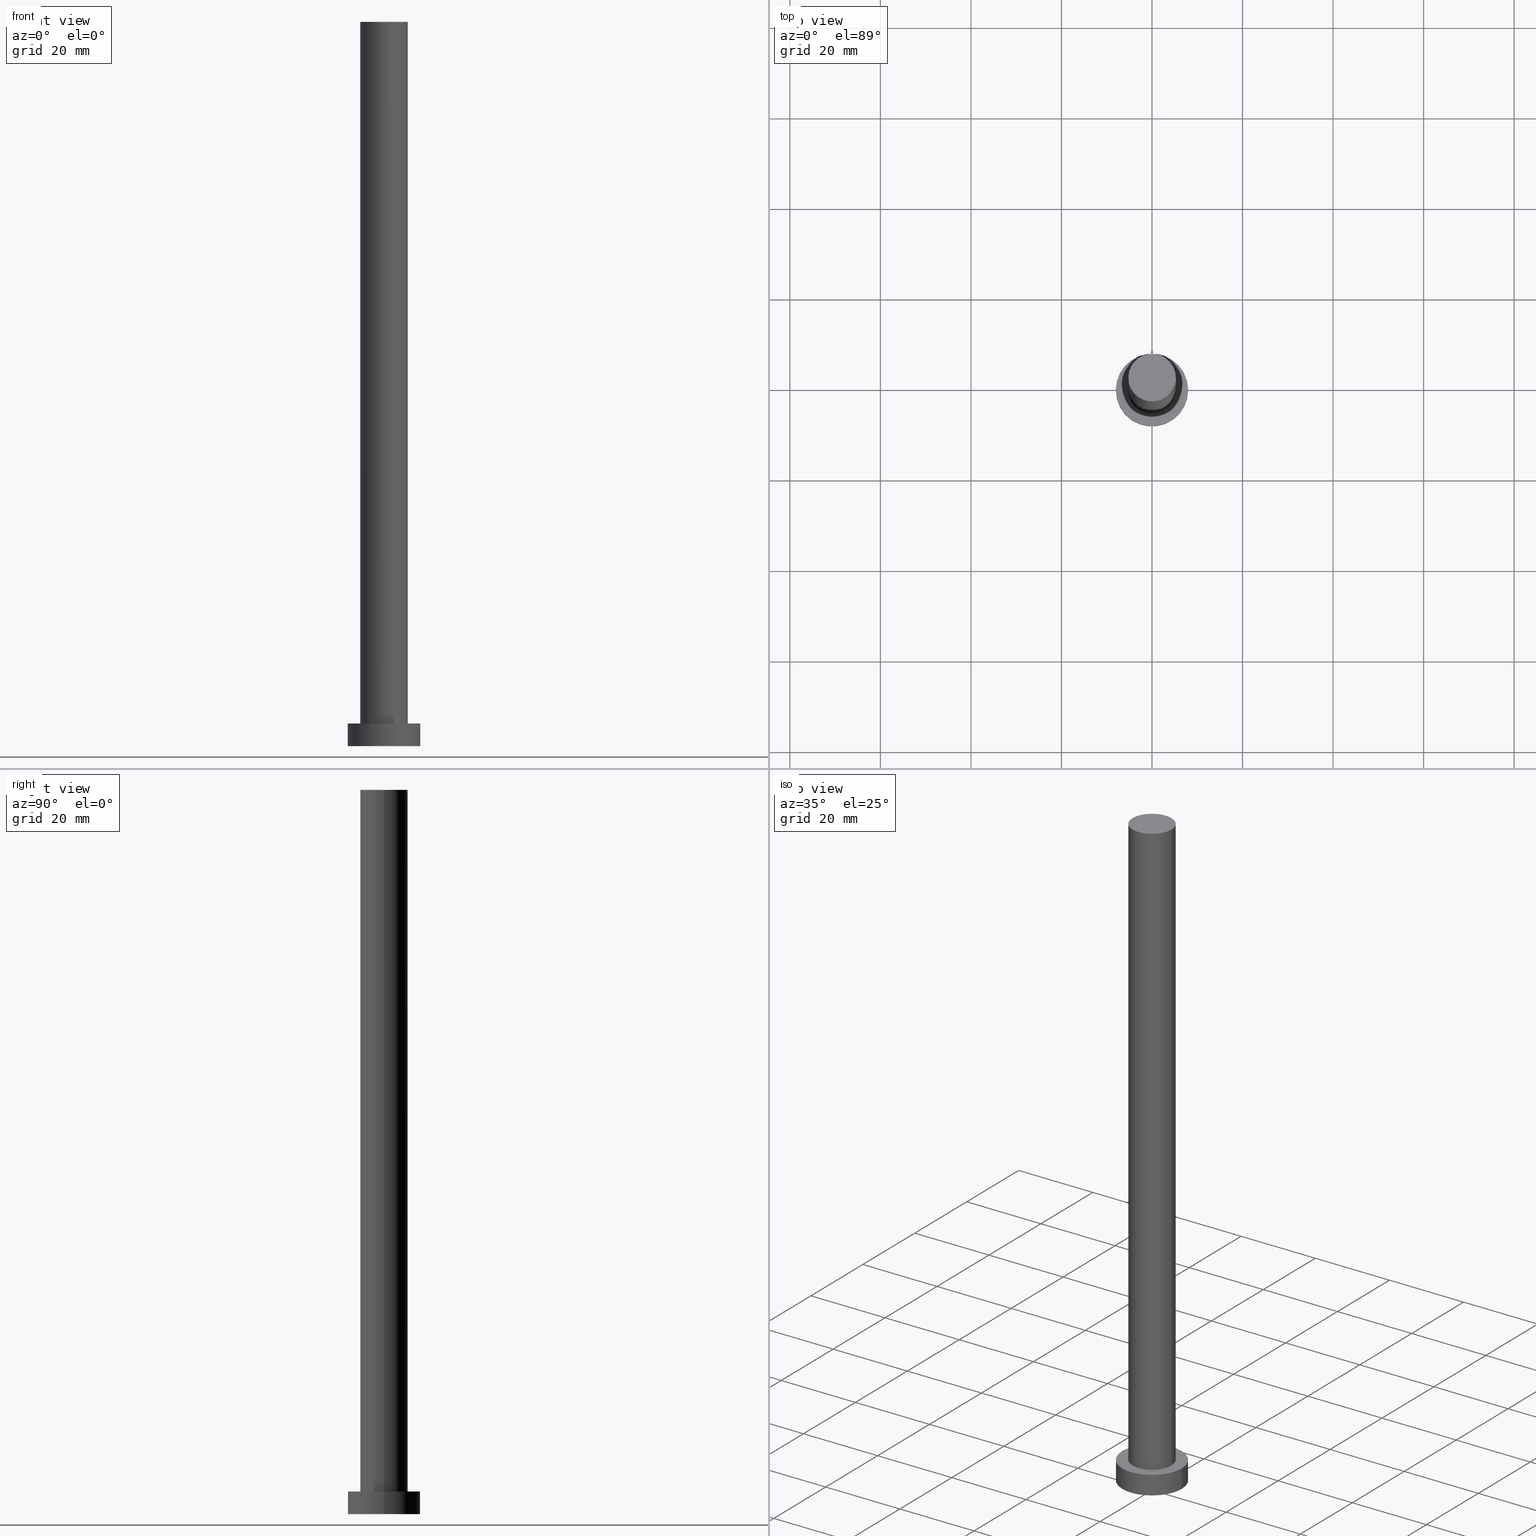
[diagram: canonical four-view strip — front | top / right | iso, engineering-drawing reading convention]
A machine part, canonical four-view strip (front | top / right | iso — engineering-drawing reading convention). The complete STEP part file that produces these views, byte-faithful:
ISO-10303-21;
HEADER;
FILE_DESCRIPTION (( 'STEP AP203' ),
    '1' );
FILE_NAME ('a9ab.STEP',
    '2023-02-13T13:13:53',
    ( '' ),
    ( '' ),
    'SwSTEP 2.0',
    'SolidWorks 2019',
    '' );
FILE_SCHEMA (( 'CONFIG_CONTROL_DESIGN' ));
ENDSEC;

DATA;
#1 = CALENDAR_DATE ( 2023, 13, 2 ) ;
#2 = APPLICATION_CONTEXT ( 'configuration controlled 3d designs of mechanical parts and assemblies' ) ;
#3 = CARTESIAN_POINT ( 'NONE',  ( 0.000000000000000000, 0.000000000000000000, 160.0000000000000000 ) ) ;
#4 = CIRCLE ( 'NONE', #49, 8.000000000000000000 ) ;
#5 = CARTESIAN_POINT ( 'NONE',  ( 8.000000000000000000, 9.797174393178825657E-16, 0.000000000000000000 ) ) ;
#6 = FACE_OUTER_BOUND ( 'NONE', #244, .T. ) ;
#7 = FACE_OUTER_BOUND ( 'NONE', #29, .T. ) ;
#8 = CC_DESIGN_APPROVAL ( #78, ( #202 ) ) ;
#9 = EDGE_CURVE ( 'NONE', #137, #64, #108, .T. ) ;
#10 = CARTESIAN_POINT ( 'NONE',  ( -8.000000000000000000, 0.000000000000000000, 5.000000000000000000 ) ) ;
#11 = ADVANCED_FACE ( 'NONE', ( #240 ), #126, .T. ) ;
#12 = FACE_BOUND ( 'NONE', #121, .T. ) ;
#13 = CYLINDRICAL_SURFACE ( 'NONE', #60, 8.000000000000000000 ) ;
#14 = CIRCLE ( 'NONE', #157, 5.250000000000000000 ) ;
#15 = DIRECTION ( 'NONE',  ( 0.000000000000000000, 0.000000000000000000, 1.000000000000000000 ) ) ;
#16 = CC_DESIGN_PERSON_AND_ORGANIZATION_ASSIGNMENT ( #18, #138, ( #202 ) ) ;
#17 = PERSON_AND_ORGANIZATION ( #38, #219 ) ;
#18 = PERSON_AND_ORGANIZATION ( #38, #219 ) ;
#19 = ORIENTED_EDGE ( 'NONE', *, *, #151, .F. ) ;
#20 = LOCAL_TIME ( 14, 13, 53.00000000000000000, #239 ) ;
#21 = DATE_AND_TIME ( #124, #20 ) ;
#22 = CIRCLE ( 'NONE', #98, 5.250000000000000000 ) ;
#23 = DIRECTION ( 'NONE',  ( -0.000000000000000000, -0.000000000000000000, -1.000000000000000000 ) ) ;
#24 = PERSON_AND_ORGANIZATION ( #38, #219 ) ;
#25 = VERTEX_POINT ( 'NONE', #10 ) ;
#26 = PERSON_AND_ORGANIZATION_ROLE ( 'classification_officer' ) ;
#27 = ADVANCED_FACE ( 'NONE', ( #6 ), #90, .T. ) ;
#28 = LINE ( 'NONE', #45, #59 ) ;
#29 = EDGE_LOOP ( 'NONE', ( #253, #73 ) ) ;
#30 = EDGE_LOOP ( 'NONE', ( #190, #50 ) ) ;
#31 = ORIENTED_EDGE ( 'NONE', *, *, #9, .F. ) ;
#32 = DIRECTION ( 'NONE',  ( 0.000000000000000000, 0.000000000000000000, 1.000000000000000000 ) ) ;
#33 = DIRECTION ( 'NONE',  ( 1.000000000000000000, 0.000000000000000000, 0.000000000000000000 ) ) ;
#34 = DIRECTION ( 'NONE',  ( -0.000000000000000000, -0.000000000000000000, -1.000000000000000000 ) ) ;
#35 = CC_DESIGN_PERSON_AND_ORGANIZATION_ASSIGNMENT ( #24, #26, ( #111 ) ) ;
#36 = AXIS2_PLACEMENT_3D ( 'NONE', #170, #250, #209 ) ;
#37 =( NAMED_UNIT ( * ) SI_UNIT ( $, .STERADIAN. ) SOLID_ANGLE_UNIT ( ) );
#38 = PERSON ( 'NEUR�EN�', 'NEUR�EN�', 'NEUR�EN�', ('NEUR�EN�'), ('NEUR�EN�'), ('NEUR�EN�') ) ;
#39 = ADVANCED_FACE ( 'NONE', ( #105 ), #204, .T. ) ;
#40 = PERSON_AND_ORGANIZATION ( #38, #219 ) ;
#41 = CIRCLE ( 'NONE', #148, 5.250000000000000000 ) ;
#42 = APPLICATION_PROTOCOL_DEFINITION ( 'international standard', 'config_control_design', 1994, #251 ) ;
#43 = DESIGN_CONTEXT ( 'detailed design', #251, 'design' ) ;
#44 = LOCAL_TIME ( 14, 13, 53.00000000000000000, #149 ) ;
#45 = CARTESIAN_POINT ( 'NONE',  ( -5.250000000000000000, 0.000000000000000000, 160.0000000000000000 ) ) ;
#46 = COORDINATED_UNIVERSAL_TIME_OFFSET ( 1, 0, .AHEAD. ) ;
#47 = ORIENTED_EDGE ( 'NONE', *, *, #72, .T. ) ;
#48 = VERTEX_POINT ( 'NONE', #65 ) ;
#49 = AXIS2_PLACEMENT_3D ( 'NONE', #168, #113, #132 ) ;
#50 = ORIENTED_EDGE ( 'NONE', *, *, #246, .T. ) ;
#51 = ADVANCED_FACE ( 'NONE', ( #186 ), #93, .T. ) ;
#52 = CC_DESIGN_DATE_AND_TIME_ASSIGNMENT ( #77, #140, ( #202 ) ) ;
#53 = DIRECTION ( 'NONE',  ( -0.000000000000000000, -0.000000000000000000, -1.000000000000000000 ) ) ;
#54 = DIRECTION ( 'NONE',  ( -0.000000000000000000, -0.000000000000000000, -1.000000000000000000 ) ) ;
#55 = DIRECTION ( 'NONE',  ( -0.000000000000000000, -0.000000000000000000, -1.000000000000000000 ) ) ;
#56 = AXIS2_PLACEMENT_3D ( 'NONE', #188, #245, #191 ) ;
#57 =( LENGTH_UNIT ( ) NAMED_UNIT ( * ) SI_UNIT ( .MILLI., .METRE. ) );
#58 = EDGE_CURVE ( 'NONE', #137, #129, #22, .T. ) ;
#59 = VECTOR ( 'NONE', #82, 1000.000000000000000 ) ;
#60 = AXIS2_PLACEMENT_3D ( 'NONE', #114, #34, #135 ) ;
#61 = PERSON_AND_ORGANIZATION ( #38, #219 ) ;
#62 = APPROVAL_DATE_TIME ( #175, #78 ) ;
#63 = PERSON_AND_ORGANIZATION ( #38, #219 ) ;
#64 = VERTEX_POINT ( 'NONE', #163 ) ;
#65 = CARTESIAN_POINT ( 'NONE',  ( -8.000000000000000000, 0.000000000000000000, 0.000000000000000000 ) ) ;
#66 = CLOSED_SHELL ( 'NONE', ( #11, #216, #27, #187, #100, #51, #39 ) ) ;
#67 = CARTESIAN_POINT ( 'NONE',  ( 8.000000000000000000, 9.797174393178825657E-16, 5.000000000000000000 ) ) ;
#68 = ORIENTED_EDGE ( 'NONE', *, *, #117, .T. ) ;
#69 = CARTESIAN_POINT ( 'NONE',  ( 5.250000000000000000, 6.429395695523604153E-16, 160.0000000000000000 ) ) ;
#70 = PLANE ( 'NONE',  #155 ) ;
#71 = CARTESIAN_POINT ( 'NONE',  ( -8.000000000000000000, 0.000000000000000000, 5.000000000000000000 ) ) ;
#72 = EDGE_CURVE ( 'NONE', #129, #160, #28, .T. ) ;
#73 = ORIENTED_EDGE ( 'NONE', *, *, #171, .F. ) ;
#74 = DIRECTION ( 'NONE',  ( 0.000000000000000000, 0.000000000000000000, 1.000000000000000000 ) ) ;
#75 = MECHANICAL_CONTEXT ( 'NONE', #2, 'mechanical' ) ;
#76 = AXIS2_PLACEMENT_3D ( 'NONE', #85, #242, #208 ) ;
#77 = DATE_AND_TIME ( #143, #252 ) ;
#78 = APPROVAL ( #176, 'NEUR�EN�' ) ;
#79 = CIRCLE ( 'NONE', #36, 5.250000000000000000 ) ;
#80 = APPROVAL_DATE_TIME ( #95, #214 ) ;
#81 = PRODUCT_RELATED_PRODUCT_CATEGORY ( 'detail', '', ( #196 ) ) ;
#82 = DIRECTION ( 'NONE',  ( -0.000000000000000000, -0.000000000000000000, -1.000000000000000000 ) ) ;
#83 = VERTEX_POINT ( 'NONE', #5 ) ;
#84 = CARTESIAN_POINT ( 'NONE',  ( 8.000000000000000000, 9.797174393178825657E-16, 5.000000000000000000 ) ) ;
#85 = CARTESIAN_POINT ( 'NONE',  ( 0.000000000000000000, 0.000000000000000000, 0.000000000000000000 ) ) ;
#86 = ORIENTED_EDGE ( 'NONE', *, *, #225, .T. ) ;
#87 = EDGE_LOOP ( 'NONE', ( #96, #68, #229, #122 ) ) ;
#88 = ORIENTED_EDGE ( 'NONE', *, *, #232, .F. ) ;
#89 = CALENDAR_DATE ( 2023, 13, 2 ) ;
#90 = CYLINDRICAL_SURFACE ( 'NONE', #222, 8.000000000000000000 ) ;
#91 = AXIS2_PLACEMENT_3D ( 'NONE', #152, #223, #131 ) ;
#92 = CC_DESIGN_APPROVAL ( #178, ( #111 ) ) ;
#93 = CYLINDRICAL_SURFACE ( 'NONE', #241, 5.250000000000000000 ) ;
#94 = CIRCLE ( 'NONE', #56, 8.000000000000000000 ) ;
#95 = DATE_AND_TIME ( #1, #195 ) ;
#96 = ORIENTED_EDGE ( 'NONE', *, *, #246, .F. ) ;
#97 = APPROVAL_ROLE ( '' ) ;
#98 = AXIS2_PLACEMENT_3D ( 'NONE', #158, #174, #197 ) ;
#99 = APPROVAL_PERSON_ORGANIZATION ( #61, #78, #97 ) ;
#100 = ADVANCED_FACE ( 'NONE', ( #7 ), #164, .F. ) ;
#101 = ORIENTED_EDGE ( 'NONE', *, *, #72, .F. ) ;
#102 = CARTESIAN_POINT ( 'NONE',  ( 0.000000000000000000, 0.000000000000000000, 160.0000000000000000 ) ) ;
#103 = CC_DESIGN_APPROVAL ( #214, ( #243 ) ) ;
#104 = PERSON_AND_ORGANIZATION ( #38, #219 ) ;
#105 = FACE_OUTER_BOUND ( 'NONE', #236, .T. ) ;
#106 = CC_DESIGN_PERSON_AND_ORGANIZATION_ASSIGNMENT ( #63, #217, ( #243 ) ) ;
#107 = APPROVAL_ROLE ( '' ) ;
#108 = LINE ( 'NONE', #69, #247 ) ;
#109 = CARTESIAN_POINT ( 'NONE',  ( 0.000000000000000000, 0.000000000000000000, 160.0000000000000000 ) ) ;
#110 = VECTOR ( 'NONE', #53, 1000.000000000000000 ) ;
#111 = SECURITY_CLASSIFICATION ( '', '', #227 ) ;
#112 = DIRECTION ( 'NONE',  ( 0.000000000000000000, 0.000000000000000000, 1.000000000000000000 ) ) ;
#113 = DIRECTION ( 'NONE',  ( 0.000000000000000000, 0.000000000000000000, 1.000000000000000000 ) ) ;
#114 = CARTESIAN_POINT ( 'NONE',  ( 0.000000000000000000, 0.000000000000000000, 5.000000000000000000 ) ) ;
#115 = AXIS2_PLACEMENT_3D ( 'NONE', #3, #218, #145 ) ;
#116 = PERSON_AND_ORGANIZATION_ROLE ( 'design_owner' ) ;
#117 = EDGE_CURVE ( 'NONE', #165, #83, #234, .T. ) ;
#118 = AXIS2_PLACEMENT_3D ( 'NONE', #169, #74, #249 ) ;
#119 = CC_DESIGN_PERSON_AND_ORGANIZATION_ASSIGNMENT ( #230, #235, ( #243 ) ) ;
#120 = DIRECTION ( 'NONE',  ( -1.000000000000000000, 0.000000000000000000, 0.000000000000000000 ) ) ;
#121 = EDGE_LOOP ( 'NONE', ( #88, #150 ) ) ;
#122 = ORIENTED_EDGE ( 'NONE', *, *, #130, .F. ) ;
#123 = CIRCLE ( 'NONE', #91, 8.000000000000000000 ) ;
#124 = CALENDAR_DATE ( 2023, 13, 2 ) ;
#125 = EDGE_LOOP ( 'NONE', ( #31, #19, #47, #237 ) ) ;
#126 = CYLINDRICAL_SURFACE ( 'NONE', #115, 5.250000000000000000 ) ;
#127 = APPROVAL_PERSON_ORGANIZATION ( #104, #178, #107 ) ;
#128 = DATE_TIME_ROLE ( 'classification_date' ) ;
#129 = VERTEX_POINT ( 'NONE', #210 ) ;
#130 = EDGE_CURVE ( 'NONE', #25, #48, #133, .T. ) ;
#131 = DIRECTION ( 'NONE',  ( 1.000000000000000000, 0.000000000000000000, 0.000000000000000000 ) ) ;
#132 = DIRECTION ( 'NONE',  ( 1.000000000000000000, 0.000000000000000000, 0.000000000000000000 ) ) ;
#133 = LINE ( 'NONE', #71, #110 ) ;
#134 = APPROVAL_PERSON_ORGANIZATION ( #17, #214, #159 ) ;
#135 = DIRECTION ( 'NONE',  ( -1.000000000000000000, 0.000000000000000000, 0.000000000000000000 ) ) ;
#136 = COORDINATED_UNIVERSAL_TIME_OFFSET ( 1, 0, .AHEAD. ) ;
#137 = VERTEX_POINT ( 'NONE', #167 ) ;
#138 = PERSON_AND_ORGANIZATION_ROLE ( 'creator' ) ;
#139 = EDGE_CURVE ( 'NONE', #48, #83, #123, .T. ) ;
#140 = DATE_TIME_ROLE ( 'creation_date' ) ;
#141 = ORIENTED_EDGE ( 'NONE', *, *, #139, .T. ) ;
#142 = FACE_OUTER_BOUND ( 'NONE', #30, .T. ) ;
#143 = CALENDAR_DATE ( 2023, 13, 2 ) ;
#144 = DATE_AND_TIME ( #89, #44 ) ;
#145 = DIRECTION ( 'NONE',  ( -1.000000000000000000, 0.000000000000000000, 0.000000000000000000 ) ) ;
#146 = ORIENTED_EDGE ( 'NONE', *, *, #9, .T. ) ;
#147 = CARTESIAN_POINT ( 'NONE',  ( 0.000000000000000000, 0.000000000000000000, 5.000000000000000000 ) ) ;
#148 = AXIS2_PLACEMENT_3D ( 'NONE', #192, #15, #33 ) ;
#149 = COORDINATED_UNIVERSAL_TIME_OFFSET ( 1, 0, .AHEAD. ) ;
#150 = ORIENTED_EDGE ( 'NONE', *, *, #225, .F. ) ;
#151 = EDGE_CURVE ( 'NONE', #129, #137, #14, .T. ) ;
#152 = CARTESIAN_POINT ( 'NONE',  ( 0.000000000000000000, 0.000000000000000000, 0.000000000000000000 ) ) ;
#153 =( GEOMETRIC_REPRESENTATION_CONTEXT ( 3 ) GLOBAL_UNCERTAINTY_ASSIGNED_CONTEXT ( ( #199 ) ) GLOBAL_UNIT_ASSIGNED_CONTEXT ( ( #57, #194, #37 ) ) REPRESENTATION_CONTEXT ( 'NONE', 'WORKASPACE' ) );
#154 = CARTESIAN_POINT ( 'NONE',  ( 0.000000000000000000, 0.000000000000000000, 160.0000000000000000 ) ) ;
#155 = AXIS2_PLACEMENT_3D ( 'NONE', #224, #112, #254 ) ;
#156 = DIRECTION ( 'NONE',  ( 0.000000000000000000, 0.000000000000000000, 1.000000000000000000 ) ) ;
#157 = AXIS2_PLACEMENT_3D ( 'NONE', #109, #32, #182 ) ;
#158 = CARTESIAN_POINT ( 'NONE',  ( 0.000000000000000000, 0.000000000000000000, 160.0000000000000000 ) ) ;
#159 = APPROVAL_ROLE ( '' ) ;
#160 = VERTEX_POINT ( 'NONE', #166 ) ;
#161 = CIRCLE ( 'NONE', #118, 8.000000000000000000 ) ;
#162 = ORIENTED_EDGE ( 'NONE', *, *, #58, .T. ) ;
#163 = CARTESIAN_POINT ( 'NONE',  ( 5.250000000000000000, 6.429395695523604153E-16, 5.000000000000000000 ) ) ;
#164 = PLANE ( 'NONE',  #76 ) ;
#165 = VERTEX_POINT ( 'NONE', #84 ) ;
#166 = CARTESIAN_POINT ( 'NONE',  ( -5.250000000000000000, 0.000000000000000000, 5.000000000000000000 ) ) ;
#167 = CARTESIAN_POINT ( 'NONE',  ( 5.250000000000000000, 6.429395695523604153E-16, 160.0000000000000000 ) ) ;
#168 = CARTESIAN_POINT ( 'NONE',  ( 0.000000000000000000, 0.000000000000000000, 5.000000000000000000 ) ) ;
#169 = CARTESIAN_POINT ( 'NONE',  ( 0.000000000000000000, 0.000000000000000000, 5.000000000000000000 ) ) ;
#170 = CARTESIAN_POINT ( 'NONE',  ( 0.000000000000000000, 0.000000000000000000, 5.000000000000000000 ) ) ;
#171 = EDGE_CURVE ( 'NONE', #83, #48, #94, .T. ) ;
#172 = APPLICATION_PROTOCOL_DEFINITION ( 'international standard', 'config_control_design', 1994, #2 ) ;
#173 = CC_DESIGN_PERSON_AND_ORGANIZATION_ASSIGNMENT ( #40, #116, ( #196 ) ) ;
#174 = DIRECTION ( 'NONE',  ( 0.000000000000000000, 0.000000000000000000, 1.000000000000000000 ) ) ;
#175 = DATE_AND_TIME ( #198, #183 ) ;
#176 = APPROVAL_STATUS ( 'not_yet_approved' ) ;
#177 = AXIS2_PLACEMENT_3D ( 'NONE', #193, #156, #231 ) ;
#178 = APPROVAL ( #206, 'NEUR�EN�' ) ;
#179 = SHAPE_DEFINITION_REPRESENTATION ( #255, #213 ) ;
#180 = ORIENTED_EDGE ( 'NONE', *, *, #117, .F. ) ;
#181 = CC_DESIGN_DATE_AND_TIME_ASSIGNMENT ( #21, #128, ( #111 ) ) ;
#182 = DIRECTION ( 'NONE',  ( 1.000000000000000000, 0.000000000000000000, 0.000000000000000000 ) ) ;
#183 = LOCAL_TIME ( 14, 13, 53.00000000000000000, #46 ) ;
#184 = DIRECTION ( 'NONE',  ( 0.000000000000000000, 0.000000000000000000, 1.000000000000000000 ) ) ;
#185 = ORIENTED_EDGE ( 'NONE', *, *, #130, .T. ) ;
#186 = FACE_OUTER_BOUND ( 'NONE', #125, .T. ) ;
#187 = ADVANCED_FACE ( 'NONE', ( #12, #142 ), #70, .T. ) ;
#188 = CARTESIAN_POINT ( 'NONE',  ( 0.000000000000000000, 0.000000000000000000, 0.000000000000000000 ) ) ;
#189 = DIRECTION ( 'NONE',  ( -1.000000000000000000, 0.000000000000000000, 0.000000000000000000 ) ) ;
#190 = ORIENTED_EDGE ( 'NONE', *, *, #203, .T. ) ;
#191 = DIRECTION ( 'NONE',  ( 1.000000000000000000, 0.000000000000000000, 0.000000000000000000 ) ) ;
#192 = CARTESIAN_POINT ( 'NONE',  ( 0.000000000000000000, 0.000000000000000000, 5.000000000000000000 ) ) ;
#193 = CARTESIAN_POINT ( 'NONE',  ( 0.000000000000000000, 0.000000000000000000, 0.000000000000000000 ) ) ;
#194 =( NAMED_UNIT ( * ) PLANE_ANGLE_UNIT ( ) SI_UNIT ( $, .RADIAN. ) );
#195 = LOCAL_TIME ( 14, 13, 53.00000000000000000, #215 ) ;
#196 = PRODUCT ( 'a9ab', 'a9ab', '', ( #75 ) ) ;
#197 = DIRECTION ( 'NONE',  ( 1.000000000000000000, 0.000000000000000000, 0.000000000000000000 ) ) ;
#198 = CALENDAR_DATE ( 2023, 13, 2 ) ;
#199 = UNCERTAINTY_MEASURE_WITH_UNIT (LENGTH_MEASURE( 1.000000000000000082E-05 ), #57, 'distance_accuracy_value', 'NONE');
#200 = AXIS2_PLACEMENT_3D ( 'NONE', #102, #184, #238 ) ;
#201 = APPROVAL_STATUS ( 'not_yet_approved' ) ;
#202 = PRODUCT_DEFINITION ( 'NEZN�M�', '', #243, #43 ) ;
#203 = EDGE_CURVE ( 'NONE', #25, #165, #4, .T. ) ;
#204 = PLANE ( 'NONE',  #200 ) ;
#205 = VECTOR ( 'NONE', #55, 1000.000000000000000 ) ;
#206 = APPROVAL_STATUS ( 'not_yet_approved' ) ;
#207 = EDGE_LOOP ( 'NONE', ( #228, #146, #86, #101 ) ) ;
#208 = DIRECTION ( 'NONE',  ( 1.000000000000000000, 0.000000000000000000, -0.000000000000000000 ) ) ;
#209 = DIRECTION ( 'NONE',  ( 1.000000000000000000, 0.000000000000000000, 0.000000000000000000 ) ) ;
#210 = CARTESIAN_POINT ( 'NONE',  ( -5.250000000000000000, 0.000000000000000000, 160.0000000000000000 ) ) ;
#211 = FACE_OUTER_BOUND ( 'NONE', #87, .T. ) ;
#212 = MANIFOLD_SOLID_BREP ( 'P�idat vysunut�m3', #66 ) ;
#213 = ADVANCED_BREP_SHAPE_REPRESENTATION ( 'a9ab', ( #212, #177 ), #153 ) ;
#214 = APPROVAL ( #201, 'NEUR�EN�' ) ;
#215 = COORDINATED_UNIVERSAL_TIME_OFFSET ( 1, 0, .AHEAD. ) ;
#216 = ADVANCED_FACE ( 'NONE', ( #211 ), #13, .T. ) ;
#217 = PERSON_AND_ORGANIZATION_ROLE ( 'design_supplier' ) ;
#218 = DIRECTION ( 'NONE',  ( -0.000000000000000000, -0.000000000000000000, -1.000000000000000000 ) ) ;
#219 = ORGANIZATION ( 'NEUR�EN�', 'NEUR�EN�', '' ) ;
#220 = APPROVAL_DATE_TIME ( #144, #178 ) ;
#221 = DIRECTION ( 'NONE',  ( -0.000000000000000000, -0.000000000000000000, -1.000000000000000000 ) ) ;
#222 = AXIS2_PLACEMENT_3D ( 'NONE', #147, #221, #120 ) ;
#223 = DIRECTION ( 'NONE',  ( 0.000000000000000000, 0.000000000000000000, 1.000000000000000000 ) ) ;
#224 = CARTESIAN_POINT ( 'NONE',  ( 0.000000000000000000, 0.000000000000000000, 5.000000000000000000 ) ) ;
#225 = EDGE_CURVE ( 'NONE', #64, #160, #79, .T. ) ;
#226 = ORIENTED_EDGE ( 'NONE', *, *, #151, .T. ) ;
#227 = SECURITY_CLASSIFICATION_LEVEL ( 'unclassified' ) ;
#228 = ORIENTED_EDGE ( 'NONE', *, *, #58, .F. ) ;
#229 = ORIENTED_EDGE ( 'NONE', *, *, #171, .T. ) ;
#230 = PERSON_AND_ORGANIZATION ( #38, #219 ) ;
#231 = DIRECTION ( 'NONE',  ( 1.000000000000000000, 0.000000000000000000, 0.000000000000000000 ) ) ;
#232 = EDGE_CURVE ( 'NONE', #160, #64, #41, .T. ) ;
#233 = ORIENTED_EDGE ( 'NONE', *, *, #203, .F. ) ;
#234 = LINE ( 'NONE', #67, #205 ) ;
#235 = PERSON_AND_ORGANIZATION_ROLE ( 'creator' ) ;
#236 = EDGE_LOOP ( 'NONE', ( #226, #162 ) ) ;
#237 = ORIENTED_EDGE ( 'NONE', *, *, #232, .T. ) ;
#238 = DIRECTION ( 'NONE',  ( 1.000000000000000000, 0.000000000000000000, -0.000000000000000000 ) ) ;
#239 = COORDINATED_UNIVERSAL_TIME_OFFSET ( 1, 0, .AHEAD. ) ;
#240 = FACE_OUTER_BOUND ( 'NONE', #207, .T. ) ;
#241 = AXIS2_PLACEMENT_3D ( 'NONE', #154, #54, #189 ) ;
#242 = DIRECTION ( 'NONE',  ( 0.000000000000000000, 0.000000000000000000, 1.000000000000000000 ) ) ;
#243 = PRODUCT_DEFINITION_FORMATION_WITH_SPECIFIED_SOURCE ( 'LIBOVOLN�', '', #196, .NOT_KNOWN. ) ;
#244 = EDGE_LOOP ( 'NONE', ( #180, #233, #185, #141 ) ) ;
#245 = DIRECTION ( 'NONE',  ( 0.000000000000000000, 0.000000000000000000, 1.000000000000000000 ) ) ;
#246 = EDGE_CURVE ( 'NONE', #165, #25, #161, .T. ) ;
#247 = VECTOR ( 'NONE', #23, 1000.000000000000000 ) ;
#248 = CC_DESIGN_SECURITY_CLASSIFICATION ( #111, ( #243 ) ) ;
#249 = DIRECTION ( 'NONE',  ( 1.000000000000000000, 0.000000000000000000, 0.000000000000000000 ) ) ;
#250 = DIRECTION ( 'NONE',  ( 0.000000000000000000, 0.000000000000000000, 1.000000000000000000 ) ) ;
#251 = APPLICATION_CONTEXT ( 'configuration controlled 3d designs of mechanical parts and assemblies' ) ;
#252 = LOCAL_TIME ( 14, 13, 53.00000000000000000, #136 ) ;
#253 = ORIENTED_EDGE ( 'NONE', *, *, #139, .F. ) ;
#254 = DIRECTION ( 'NONE',  ( 1.000000000000000000, 0.000000000000000000, -0.000000000000000000 ) ) ;
#255 = PRODUCT_DEFINITION_SHAPE ( 'NONE', 'NONE',  #202 ) ;
ENDSEC;
END-ISO-10303-21;
